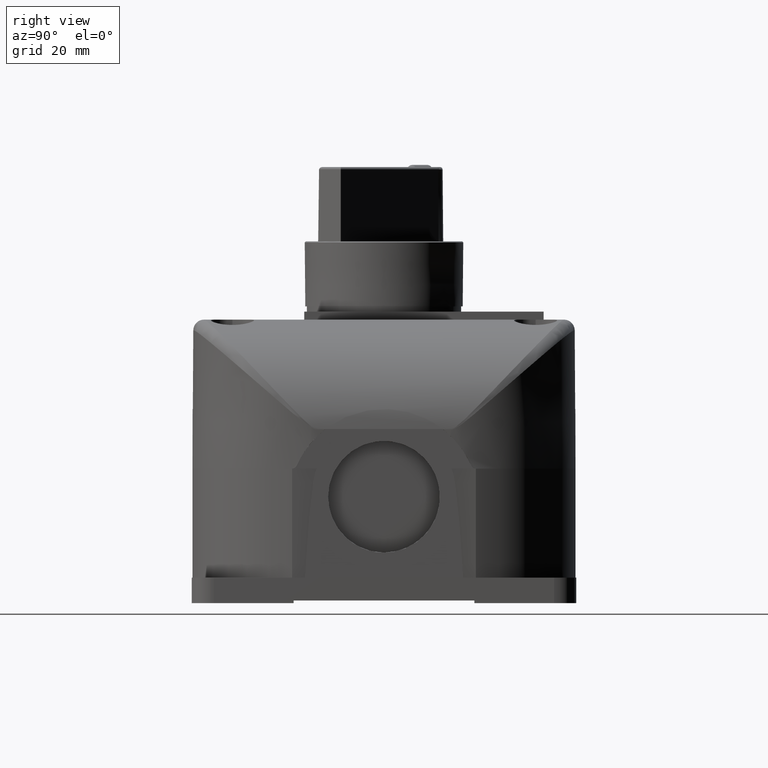
[diagram: clean part render]
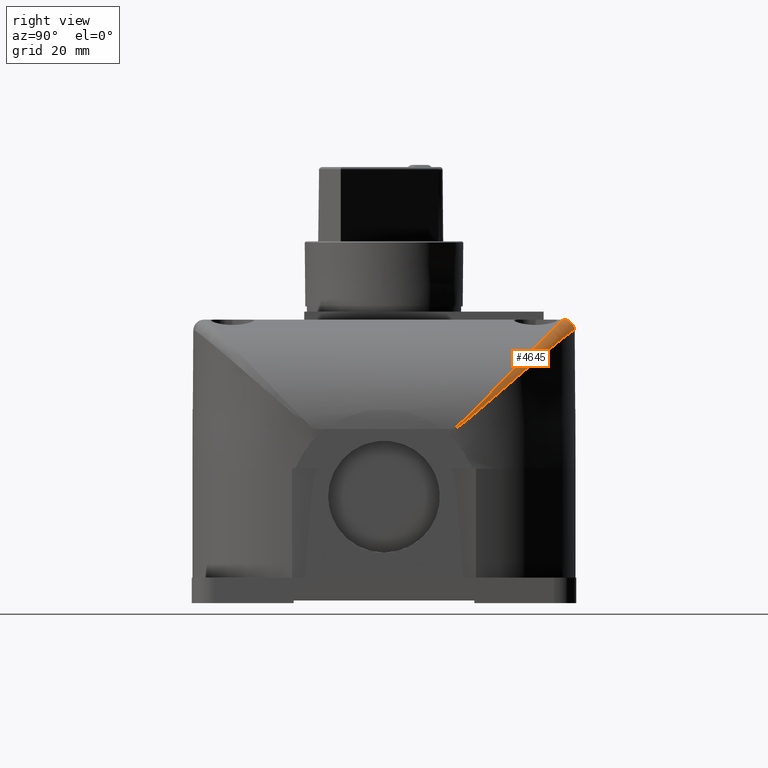
[diagram: same view with one face highlighted and labeled with its STEP entity id]
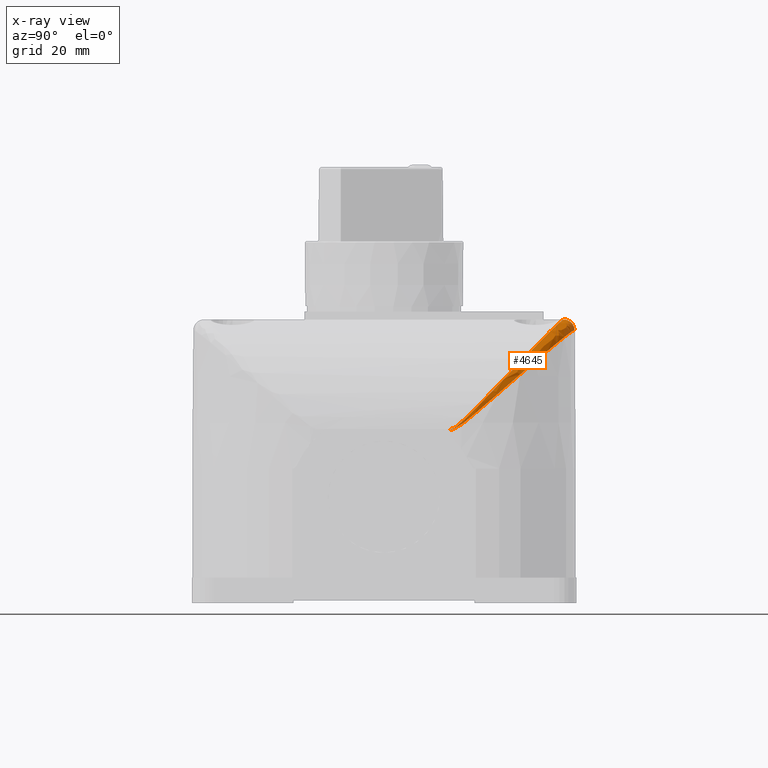
[diagram: x-ray of the same camera — body ghosted, the highlighted face saturated]
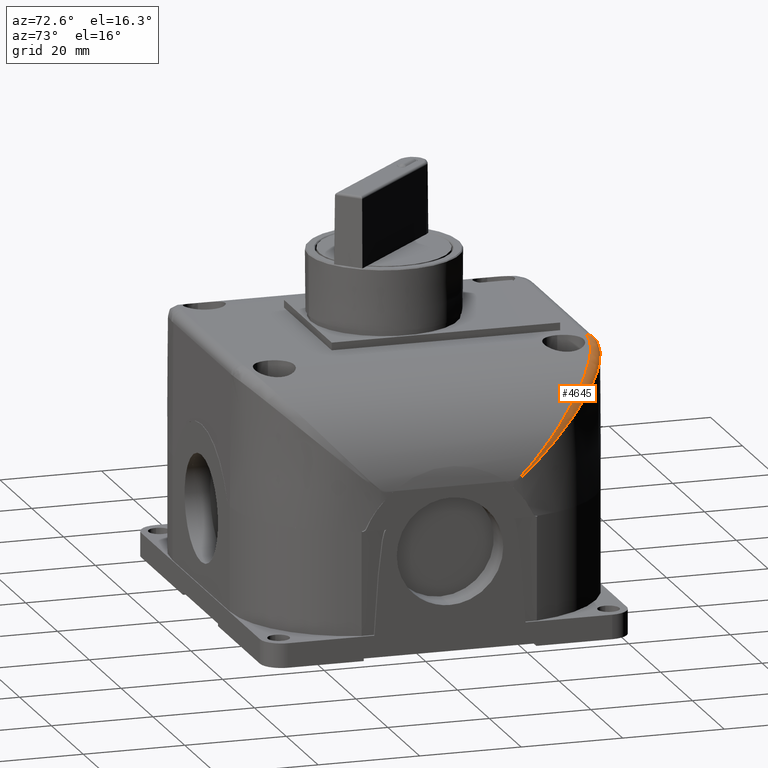
[diagram: same view with one face highlighted and labeled with its STEP entity id]
A machine part, right view. The second image highlights one B-rep face of the part: STEP entity #4645.
The next image is the same camera in x-ray: the body ghosted, the highlighted face saturated — about 0% of this face is hidden behind the body in this view.
A second angle (auxiliary view) of the same face is appended — the face is thin or edge-on in the first view.
In plain terms, the highlighted face is a freeform B-spline surface patch.
Its self-contained STEP definition (entity closure, byte-faithful):
#176 = CARTESIAN_POINT ( 'NONE',  ( 3.265404575038634238, -0.9051935461866198462, 1.295541807410427904 ) ) ;
#209 = CARTESIAN_POINT ( 'NONE',  ( 2.909397215600627362, -0.2062627134188037559, 1.872292926878065256 ) ) ;
#283 = CARTESIAN_POINT ( 'NONE',  ( 2.834468908178523705, -0.2134441021156443241, 1.992021453472787362 ) ) ;
#298 = CARTESIAN_POINT ( 'NONE',  ( 3.265698535053056073, -0.9152756871707017350, 1.291380827273003185 ) ) ;
#417 = CARTESIAN_POINT ( 'NONE',  ( 3.261533460408405638, -0.8520517123228971146, 1.335593132237050451 ) ) ;
#457 = CARTESIAN_POINT ( 'NONE',  ( 3.218629158681876934, -0.6425265360022325289, 1.495715073343560908 ) ) ;
#588 = CARTESIAN_POINT ( 'NONE',  ( 3.254011706640219437, -0.7856945697005465190, 1.373671280190175592 ) ) ;
#705 = CARTESIAN_POINT ( 'NONE',  ( 3.226349882874069319, -0.6669195089175868896, 1.474662282265948532 ) ) ;
#775 = CARTESIAN_POINT ( 'NONE',  ( 2.843097090341551336, -0.1962723902407230991, 1.987224686444047039 ) ) ;
#787 = CARTESIAN_POINT ( 'NONE',  ( 3.211403584411341772, -0.6499550670571786481, 1.539495812780744544 ) ) ;
#820 = CARTESIAN_POINT ( 'NONE',  ( 3.143119009883904358, -0.4748091074085727947, 1.641360134473006216 ) ) ;
#914 = CARTESIAN_POINT ( 'NONE',  ( 3.014916225607195521, -0.3572907007955891667, 1.844476032022297041 ) ) ;
#951 = CARTESIAN_POINT ( 'NONE',  ( 3.251237301027479099, -0.7695063356701178359, 1.387257002598565547 ) ) ;
#1022 = CARTESIAN_POINT ( 'NONE',  ( 3.265938728670791935, -0.9222339530745498060, 1.287754308826174698 ) ) ;
#1038 = CARTESIAN_POINT ( 'NONE',  ( 3.253581560407081241, -0.7972325579423396036, 1.388155249814208902 ) ) ;
#1152 = CARTESIAN_POINT ( 'NONE',  ( 3.263998959076630069, -0.8734562626517468065, 1.313833186414717025 ) ) ;
#1162 = CARTESIAN_POINT ( 'NONE',  ( 3.116581200251230310, -0.4752133043386753131, 1.721821775155810252 ) ) ;
#1279 = CARTESIAN_POINT ( 'NONE',  ( 3.265880676548598149, -0.9223871351431208732, 1.288643507093705232 ) ) ;
#1291 = CARTESIAN_POINT ( 'NONE',  ( 3.234947611988189031, -0.7185866174914208315, 1.468282772683580095 ) ) ;
#1560 = CARTESIAN_POINT ( 'NONE',  ( 3.263953180886423056, -0.8709540560974848855, 1.307984237566448993 ) ) ;
#1635 = CARTESIAN_POINT ( 'NONE',  ( 3.183403443724145632, -0.5237034215938293213, 1.598672335837263647 ) ) ;
#1643 = CARTESIAN_POINT ( 'NONE',  ( 2.784434683786902731, -0.1951204018283026476, 2.009214132178566370 ) ) ;
#1768 = CARTESIAN_POINT ( 'NONE',  ( 2.638402390324511959, -0.05061226366351440770, 2.000304684658696708 ) ) ;
#1839 = CARTESIAN_POINT ( 'NONE',  ( 2.717266939781661339, -0.09127141323829790487, 1.967303337715729183 ) ) ;
#2184 = CARTESIAN_POINT ( 'NONE',  ( 3.265559621595654161, -0.9100975798091842650, 1.293372028446158506 ) ) ;
#2215 = CARTESIAN_POINT ( 'NONE',  ( 3.035003174020156624, -0.3241477515869929382, 1.771643316891613917 ) ) ;
#2339 = CARTESIAN_POINT ( 'NONE',  ( 3.210674272793932804, -0.6199981931722418071, 1.515234389416003413 ) ) ;
#2408 = CARTESIAN_POINT ( 'NONE',  ( 2.401060105458665550, -0.09268032332197131962, 2.098424899135031385 ) ) ;
#2423 = CARTESIAN_POINT ( 'NONE',  ( 3.260284757183267601, -0.8407823607793120102, 1.345854991002045864 ) ) ;
#2457 = CARTESIAN_POINT ( 'NONE',  ( 3.254019576794583202, -0.7857424925486418132, 1.373631618604346460 ) ) ;
#2533 = CARTESIAN_POINT ( 'NONE',  ( 2.634193858681181055, -0.1261521468089593645, 2.076737142844582884 ) ) ;
#2582 = CARTESIAN_POINT ( 'NONE',  ( 3.202368974907788601, -0.5979058162518261499, 1.534396040635597869 ) ) ;
#2673 = CARTESIAN_POINT ( 'NONE',  ( 2.984665937025283711, -0.3297389721143291763, 1.872906376220347058 ) ) ;
#2706 = CARTESIAN_POINT ( 'NONE',  ( 3.053603733796637965, -0.3459946496696960638, 1.752844619389802183 ) ) ;
#2789 = CARTESIAN_POINT ( 'NONE',  ( 3.255256975148223653, -0.8066475089956013367, 1.378804314267621844 ) ) ;
#2821 = CARTESIAN_POINT ( 'NONE',  ( 3.253816679094688524, -0.7845116512838262723, 1.374661150937927845 ) ) ;
#2915 = CARTESIAN_POINT ( 'NONE',  ( 3.234292338125978272, -0.7163636040684386863, 1.470576650997017065 ) ) ;
#2952 = CARTESIAN_POINT ( 'NONE',  ( 3.264753166064566781, -0.8840054285562906067, 1.299838355308298388 ) ) ;
#2972 = EDGE_CURVE ( 'NONE', #10181, #15899, #3902, .T. ) ;
#3028 = CARTESIAN_POINT ( 'NONE',  ( 2.648841798339527376, -0.06733377065650252014, 2.055014111569227975 ) ) ;
#3039 = CARTESIAN_POINT ( 'NONE',  ( 3.250699855379799441, -0.7823085943282255261, 1.403129808930588363 ) ) ;
#3061 = CARTESIAN_POINT ( 'NONE',  ( 2.407107141098121961, -0.01402467430815445594, 2.020143128453144143 ) ) ;
#3156 = CARTESIAN_POINT ( 'NONE',  ( 3.160107092039146526, -0.5436324238325108693, 1.650454988016291757 ) ) ;
#3254 = B_SPLINE_SURFACE_WITH_KNOTS ( 'NONE', 3, 3, ( 
 ( #2408, #19515, #2533, #283, #15399, #17885, #23491, #18257, #13911, #8460, #1279, #19639 ),
 ( #4517, #18012, #16397, #775, #14283, #15890, #6596, #10563, #1152, #5008, #1022, #8586 ),
 ( #21873, #12418, #3028, #17762, #6477, #21638, #4637, #12162, #23617, #22007, #20138, #14161 ),
 ( #21756, #3621, #22495, #11040, #24109, #24344, #24459, #20739, #10925, #16758, #18744, #9071 ),
 ( #5588, #24224, #1768, #9316, #7217, #1635, #16520, #14658, #7101, #14783, #6977, #22248 ) ),
 .UNSPECIFIED., .F., .F., .F.,
 ( 4, 1, 4 ),
 ( 4, 1, 1, 1, 1, 1, 1, 1, 1, 4 ),
 ( -0.001168171341295950018, 0.5714285714285709528, 1.000988294529340017 ),
 ( -0.001168171341295950018, 0.5428446137748109690, 1.085689227549619940, 1.628533841324429909, 2.714223068874059841, 3.257067682648870033, 3.528489989536269800, 3.664201142979980119, 3.732056719701830172, 3.801080467764979876 ),
 .UNSPECIFIED. ) ;
#3279 = CARTESIAN_POINT ( 'NONE',  ( 2.722954377266189052, -0.1664587572626944900, 2.037226366823465806 ) ) ;
#3312 = CARTESIAN_POINT ( 'NONE',  ( 3.261363370844574838, -0.8407881748383607690, 1.329603498036936005 ) ) ;
#3399 = CARTESIAN_POINT ( 'NONE',  ( 2.605673103801147583, -0.1267654090364580821, 2.074035419141702974 ) ) ;
#3431 = CARTESIAN_POINT ( 'NONE',  ( 3.263280459222644314, -0.8616695924936470519, 1.314232485565598463 ) ) ;
#3571 = CARTESIAN_POINT ( 'NONE',  ( 2.687146404492781748, -0.07850322852661917317, 1.977372134583807117 ) ) ;
#3621 = CARTESIAN_POINT ( 'NONE',  ( 2.486054077679862306, -0.01961471218267985678, 2.037640208319775326 ) ) ;
#3698 = CARTESIAN_POINT ( 'NONE',  ( 2.832273466648766114, -0.1521570529982097242, 1.917669540808257800 ) ) ;
#3902 =( BOUNDED_CURVE ( )  B_SPLINE_CURVE ( 3, ( #16052, #4920, #23773, #3061 ),
 .UNSPECIFIED., .F., .F. ) 
 B_SPLINE_CURVE_WITH_KNOTS ( ( 4, 4 ),
 ( 0.000000000000000000, 1.000000000000000000 ),
 .UNSPECIFIED. ) 
 CURVE ( )  GEOMETRIC_REPRESENTATION_ITEM ( )  RATIONAL_B_SPLINE_CURVE ( ( 1.000000000000000000, 0.8061071179409632359, 0.8061071179409632359, 1.000000000000000000 ) ) 
 REPRESENTATION_ITEM ( '' )  );
#3912 = CARTESIAN_POINT ( 'NONE',  ( 3.264741905503198982, -0.8910037520799722888, 1.304010267330316886 ) ) ;
#3944 = CARTESIAN_POINT ( 'NONE',  ( 2.909103168376768078, -0.2060342114587695173, 1.872486100607543058 ) ) ;
#4073 = CARTESIAN_POINT ( 'NONE',  ( 2.655322623426026318, -0.06629792618967969564, 1.986815081282234274 ) ) ;
#4193 = CARTESIAN_POINT ( 'NONE',  ( 3.206695412874643214, -0.6092299515973359503, 1.524572486869956833 ) ) ;
#4284 = CARTESIAN_POINT ( 'NONE',  ( 3.261388886750414606, -0.8507358148511436902, 1.336788259634980269 ) ) ;
#4318 = CARTESIAN_POINT ( 'NONE',  ( 3.254014665224195912, -0.7857125904988316867, 1.373656439488645020 ) ) ;
#4400 = CARTESIAN_POINT ( 'NONE',  ( 3.265521307670927076, -0.9088467583060406696, 1.293910971693332801 ) ) ;
#4435 = CARTESIAN_POINT ( 'NONE',  ( 3.230641326129187973, -0.6815113600429096863, 1.462103403895249176 ) ) ;
#4517 = CARTESIAN_POINT ( 'NONE',  ( 2.402699764481468492, -0.06921623472361689011, 2.098471810389669123 ) ) ;
#4530 = CARTESIAN_POINT ( 'NONE',  ( 3.201034646951566032, -0.6240027018628380162, 1.566555334427148116 ) ) ;
#4565 = CARTESIAN_POINT ( 'NONE',  ( 3.128411479173723642, -0.4501091162189385653, 1.662798337870582399 ) ) ;
#4637 = CARTESIAN_POINT ( 'NONE',  ( 3.244362096457732658, -0.7253460425952938939, 1.440634019675102406 ) ) ;
#4645 = ADVANCED_FACE ( 'NONE', ( #21136 ), #3254, .F. ) ;
#4651 = CARTESIAN_POINT ( 'NONE',  ( 3.220716979347994169, -0.6746482443477958002, 1.513786743370503451 ) ) ;
#4684 = CARTESIAN_POINT ( 'NONE',  ( 3.233920328808200129, -0.6933088595275868071, 1.451970609780705690 ) ) ;
#4768 = CARTESIAN_POINT ( 'NONE',  ( 3.210606187184909643, -0.6479465277111584598, 1.541589747267571919 ) ) ;
#4895 = CARTESIAN_POINT ( 'NONE',  ( 3.248232437310654142, -0.7702737956006510123, 1.415288741448876397 ) ) ;
#4920 = CARTESIAN_POINT ( 'NONE',  ( 2.404800696794592074, -0.04676994213271704059, 2.098425196850393970 ) ) ;
#5008 = CARTESIAN_POINT ( 'NONE',  ( 3.265594310168094871, -0.9043755111037979910, 1.293329545019457294 ) ) ;
#5018 = CARTESIAN_POINT ( 'NONE',  ( 3.054198358625548337, -0.3984575900242663948, 1.801742989362116631 ) ) ;
#5160 = CARTESIAN_POINT ( 'NONE',  ( 3.264254262123493344, -0.8754410519113267064, 1.305057595767166623 ) ) ;
#5588 = CARTESIAN_POINT ( 'NONE',  ( 2.406605490980023632, -0.01398886917457337759, 2.020021205772378092 ) ) ;
#5596 = CARTESIAN_POINT ( 'NONE',  ( 2.883935232303584506, -0.2520787802517179266, 1.952291133547743751 ) ) ;
#5667 = CARTESIAN_POINT ( 'NONE',  ( 2.909489759096295369, -0.2063346635566310205, 1.872232098571898096 ) ) ;
#5753 = CARTESIAN_POINT ( 'NONE',  ( 3.265609840346506143, -0.9118371909029657774, 1.292659217011799422 ) ) ;
#5787 = CARTESIAN_POINT ( 'NONE',  ( 2.906218426350954509, -0.2038010990419904522, 1.874373411324637528 ) ) ;
#5833 = B_SPLINE_CURVE_WITH_KNOTS ( 'NONE', 3,
 ( #11229, #17062, #9503, #13341, #20561, #4073, #15204, #3571, #18814, #22560, #9752, #11101, #1839, #18689, #9267, #22806, #7409, #14961, #3698, #16946, #24528, #9628, #13460, #11467, #5787, #7523, #20939, #3944, #22684, #209, #5667, #13220, #20814, #19189, #19059, #7773, #2215, #15327, #17314, #22931, #2706, #12089, #10356, #17435, #23410, #8023, #12206, #17935, #10124, #4565, #19313, #10237, #820, #15699, #21682, #19689, #23298, #17807, #13722, #6276, #8508, #10005, #21186, #2582, #4193, #11722, #8382, #17685, #2339, #13842, #21566, #21429, #9875, #457, #15940, #705, #15581, #4435, #23541, #11973, #8265, #8144, #23052, #15818, #6521, #6031, #4684, #14085, #23180, #19804, #951, #19572, #6397, #6157, #2821, #13965, #17568, #21307, #4318, #13595, #11843, #19434, #2457, #588, #7134, #23784, #10843, #10480, #14697, #3312, #14580, #6764, #14205, #22047, #20178, #16187, #16437, #16561, #3431, #1560, #5160, #18304, #12329, #2952, #14328, #22287, #10963, #16309, #10605, #14465, #12691 ),
 .UNSPECIFIED., .F., .F.,
 ( 4, 2, 2, 2, 1, 1, 1, 1, 1, 2, 2, 2, 2, 1, 1, 1, 1, 1, 1, 1, 2, 2, 2, 2, 1, 1, 1, 1, 1, 1, 2, 2, 2, 2, 1, 1, 1, 1, 1, 2, 2, 2, 2, 1, 1, 1, 1, 1, 1, 2, 2, 2, 2, 1, 1, 1, 1, 1, 1, 1, 1, 2, 2, 2, 2, 2, 1, 1, 1, 1, 1, 1, 2, 2, 2, 2, 1, 1, 1, 1, 1, 2, 2, 2, 1, 1, 1, 1, 1, 2, 2, 4 ),
 ( 0.000000000000000000, 0.06250000000022395974, 0.09375000000033593961, 0.1093750000003918810, 0.1171875000004195949, 0.1210937500004331813, 0.1230468750004399814, 0.1240234375004431178, 0.1245117187504443945, 0.1247558593754447276, 0.1250000000004450607, 0.1875000000003926026, 0.2187500000003660405, 0.2343750000003530787, 0.2421875000003465006, 0.2460937500003435308, 0.2480468750003420320, 0.2490234375003412826, 0.2495117187503407274, 0.2497558593753401446, 0.2498779296878401446, 0.2500000000003401168, 0.3749999999998628319, 0.4374999999996246336, 0.4687499999995053401, 0.4843749999994461097, 0.4921874999994169664, 0.4960937499994028110, 0.4980468749993959277, 0.4990234374993917643, 0.4995117187493892108, 0.4999999999993867128, 0.5624999999991044941, 0.5937499999989632737, 0.6093749999988924415, 0.6171874999988570254, 0.6210937499988393729, 0.6230468749988303800, 0.6240234374988257171, 0.6245117187488236077, 0.6249999999988213872, 0.6874999999985562660, 0.7187499999984234833, 0.7343749999983570920, 0.7421874999983240073, 0.7460937499983075760, 0.7480468749982992493, 0.7490234374982948085, 0.7495117187482925880, 0.7497558593732916998, 0.7499999999982908117, 0.8124999999979219956, 0.8437499999977374765, 0.8593749999976453280, 0.8671874999975989207, 0.8710937499975759390, 0.8730468749975643927, 0.8740234374975588416, 0.8745117187475559550, 0.8747558593725538456, 0.8748779296850522913, 0.8749389648413017362, 0.8749999999975510701, 0.9062499999972734033, 0.9218749999971346254, 0.9296874999970655695, 0.9335937499970308195, 0.9355468749970138331, 0.9365234374970038411, 0.9370117187469988451, 0.9372558593719975129, 0.9373779296844954034, 0.9374389648407482900, 0.9374999999970011766, 0.9531249999977611242, 0.9609374999981410426, 0.9648437499983307797, 0.9667968749984257038, 0.9677734374984731103, 0.9682617187484968690, 0.9685058593735086374, 0.9686279296860146326, 0.9687499999985206278, 0.9765624999988948840, 0.9804687499990818456, 0.9824218749991753263, 0.9833984374992220667, 0.9838867187492453814, 0.9841308593742569277, 0.9842529296867625899, 0.9843749999992682520, 1.000000000000000000 ),
 .UNSPECIFIED. ) ;
#5875 = CARTESIAN_POINT ( 'NONE',  ( 3.265845720700356392, -0.9238149993118608405, 1.289187725183639222 ) ) ;
#6031 = CARTESIAN_POINT ( 'NONE',  ( 3.233913046773683853, -0.6932820699441897272, 1.451993600997686151 ) ) ;
#6124 = CARTESIAN_POINT ( 'NONE',  ( 3.265755436328508399, -0.9181531538233389522, 1.290537537307365534 ) ) ;
#6157 = CARTESIAN_POINT ( 'NONE',  ( 3.253552538982553255, -0.7829230628859342733, 1.375992484030725826 ) ) ;
#6276 = CARTESIAN_POINT ( 'NONE',  ( 3.169147016987952092, -0.5225125420611471672, 1.599894598089194098 ) ) ;
#6361 = CARTESIAN_POINT ( 'NONE',  ( 3.250571372088789435, -0.7816781633838439936, 1.403766330521868833 ) ) ;
#6397 = CARTESIAN_POINT ( 'NONE',  ( 3.253296520887268173, -0.7813924974565137349, 1.377275985172367490 ) ) ;
#6477 = CARTESIAN_POINT ( 'NONE',  ( 3.059702524945157265, -0.3370515155869948654, 1.809103282103787347 ) ) ;
#6490 = CARTESIAN_POINT ( 'NONE',  ( 3.145488084176855992, -0.5192426645756701431, 1.675898917381087871 ) ) ;
#6521 = CARTESIAN_POINT ( 'NONE',  ( 3.233902123385164362, -0.6932418879109248921, 1.452028085921292844 ) ) ;
#6596 = CARTESIAN_POINT ( 'NONE',  ( 3.243646414842287662, -0.7315379716837034918, 1.447081167564932880 ) ) ;
#6609 = CARTESIAN_POINT ( 'NONE',  ( 3.146442623731326549, -0.5207803344757439001, 1.674295236152615329 ) ) ;
#6730 = CARTESIAN_POINT ( 'NONE',  ( 2.958847662260158717, -0.3078760174144264949, 1.895378531863006977 ) ) ;
#6764 = CARTESIAN_POINT ( 'NONE',  ( 3.261906498692074496, -0.8462854314760017704, 1.325461326450994015 ) ) ;
#6861 = CARTESIAN_POINT ( 'NONE',  ( 3.251578865151983244, -0.7866878760425995987, 1.398715638915980275 ) ) ;
#6977 = CARTESIAN_POINT ( 'NONE',  ( 3.266047060377323064, -0.9215833144566639712, 1.283968394504895416 ) ) ;
#6987 = CARTESIAN_POINT ( 'NONE',  ( 2.603759304652442541, -0.1262422395406327391, 2.074497152838111536 ) ) ;
#7055 = B_SPLINE_CURVE_WITH_KNOTS ( 'NONE', 3,
 ( #19277, #15668, #5875, #6124, #298, #5753, #2184, #23265, #4400, #11931, #176, #13305, #23146, #23014, #3912, #11439, #21022, #7743, #9961, #22899, #19158, #7858, #9839, #15414, #13558, #17400, #417, #15542, #13686, #4284, #19396, #2423, #12429, #12293, #2789, #1038, #12547, #6861, #10322, #3039, #6361, #14293, #18271, #4895, #16155, #13924, #23375, #22016, #1291, #2915, #15784, #8347, #20148, #21529, #4651, #20024, #23629, #17774, #787, #21650, #4768, #4530, #10690, #15902, #21886, #3156, #10572, #12057, #18145, #6609, #23504, #6490, #12173, #19893, #1162, #8711, #16277, #14051, #19775, #23752, #14433, #23879, #5018, #17897, #8595, #19655, #914, #2673, #10449, #6730, #8471, #16029, #10203, #14173, #21766, #18024, #22382, #22502, #5596, #20391, #10932, #7345, #8842, #24116, #20746, #1643, #20615, #22141, #18627, #14789, #3279, #16640, #18751, #13023, #20263, #12788, #10815, #3399, #6987, #14666, #7225, #18870, #13148 ),
 .UNSPECIFIED., .F., .F.,
 ( 4, 2, 1, 1, 1, 2, 2, 2, 1, 1, 1, 2, 2, 2, 2, 1, 1, 1, 1, 2, 2, 2, 2, 1, 1, 1, 1, 2, 2, 2, 1, 1, 1, 2, 2, 2, 1, 1, 1, 2, 2, 2, 2, 1, 1, 1, 1, 2, 2, 2, 2, 1, 1, 1, 1, 2, 2, 2, 2, 1, 1, 1, 1, 2, 2, 2, 2, 1, 1, 1, 1, 2, 2, 2, 2, 1, 1, 1, 2, 2, 4 ),
 ( 0.000000000000000000, 0.007812499999999616626, 0.01171874999999955765, 0.01367187499999961316, 0.01464843749999974673, 0.01513671874999969989, 0.01562499999999965306, 0.02343749999999873712, 0.02734374999999836936, 0.02929687499999832773, 0.03027343749999840405, 0.03076171874999851855, 0.03124999999999863304, 0.04687499999999368561, 0.05468749999999134026, 0.05859374999999017453, 0.06054687499998955003, 0.06152343749998896716, 0.06201171874998890471, 0.06225585937498888389, 0.06249999999998885614, 0.09374999999998176459, 0.1093749999999779898, 0.1171874999999759498, 0.1210937499999749783, 0.1230468749999744787, 0.1240234374999744510, 0.1245117187499746869, 0.1249999999999749090, 0.1562499999999825140, 0.1718749999999861222, 0.1796874999999878431, 0.1835937499999887035, 0.1855468749999893141, 0.1874999999999899247, 0.2187500000000020539, 0.2343750000000082712, 0.2421875000000111855, 0.2460937500000128508, 0.2480468750000136835, 0.2500000000000145439, 0.3125000000000516254, 0.3437500000000699996, 0.3593750000000791589, 0.3671875000000837663, 0.3710937500000858758, 0.3730468750000869305, 0.3740234375000873190, 0.3750000000000877076, 0.4375000000001207923, 0.4687500000001373901, 0.4843750000001452172, 0.4921875000001495470, 0.4960937500001517675, 0.4980468750001527667, 0.4990234375001532108, 0.5000000000001536549, 0.5625000000001764144, 0.5937500000001879608, 0.6093750000001940670, 0.6171875000001967315, 0.6210937500001980638, 0.6230468750001987299, 0.6240234375001986189, 0.6250000000001986189, 0.6875000000001706413, 0.7187500000001570966, 0.7343750000001506573, 0.7421875000001475486, 0.7460937500001454392, 0.7480468750001443290, 0.7490234375001438849, 0.7500000000001433298, 0.8125000000001204592, 0.8437500000001085798, 0.8593750000001025846, 0.8671875000000991429, 0.8710937500000973666, 0.8730468750000959233, 0.8750000000000944800, 1.000000000000000000 ),
 .UNSPECIFIED. ) ;
#7101 = CARTESIAN_POINT ( 'NONE',  ( 3.264065771316732256, -0.8691824163984042118, 1.308086232543084426 ) ) ;
#7134 = CARTESIAN_POINT ( 'NONE',  ( 3.256111780195968475, -0.7984823066331531161, 1.363087891455489586 ) ) ;
#7217 = CARTESIAN_POINT ( 'NONE',  ( 3.049288504495027752, -0.3160500352760972076, 1.779292398407153586 ) ) ;
#7225 = CARTESIAN_POINT ( 'NONE',  ( 2.535890333196159752, -0.1079068621314974025, 2.090628700056198497 ) ) ;
#7345 = CARTESIAN_POINT ( 'NONE',  ( 2.814071581677079159, -0.2105623829994623664, 1.993927688369900419 ) ) ;
#7409 = CARTESIAN_POINT ( 'NONE',  ( 2.751732962819176009, -0.1066411286645080891, 1.955075251049833263 ) ) ;
#7523 = CARTESIAN_POINT ( 'NONE',  ( 2.907867535015272509, -0.2050757813329622259, 1.873296237519348706 ) ) ;
#7743 = CARTESIAN_POINT ( 'NONE',  ( 3.264581076583841224, -0.8882596634098809396, 1.305915650481825230 ) ) ;
#7773 = CARTESIAN_POINT ( 'NONE',  ( 3.026308479455352085, -0.3144866566399377450, 1.779942844912703270 ) ) ;
#7858 = CARTESIAN_POINT ( 'NONE',  ( 3.263037377680988005, -0.8673013707477652545, 1.322229943151677745 ) ) ;
#8023 = CARTESIAN_POINT ( 'NONE',  ( 3.071114866714481195, -0.3672004342664045851, 1.734581457639090107 ) ) ;
#8144 = CARTESIAN_POINT ( 'NONE',  ( 3.233723625855221773, -0.6925861550751035711, 1.452590873716744113 ) ) ;
#8265 = CARTESIAN_POINT ( 'NONE',  ( 3.233519442286818535, -0.6918380572640585591, 1.453232994724587446 ) ) ;
#8347 = CARTESIAN_POINT ( 'NONE',  ( 3.233615857010765815, -0.7140855401026400262, 1.472927898648923595 ) ) ;
#8382 = CARTESIAN_POINT ( 'NONE',  ( 3.209884636959904114, -0.6178327858517465021, 1.517111958517013193 ) ) ;
#8460 = CARTESIAN_POINT ( 'NONE',  ( 3.265524751067539366, -0.9048410337697546657, 1.294316736204057738 ) ) ;
#8471 = CARTESIAN_POINT ( 'NONE',  ( 2.951007871570922259, -0.3015022192446490945, 1.901914107584226743 ) ) ;
#8508 = CARTESIAN_POINT ( 'NONE',  ( 3.185489757182419446, -0.5576330511029200521, 1.569367394969812146 ) ) ;
#8586 = CARTESIAN_POINT ( 'NONE',  ( 3.265932662821500188, -0.9314600149672388474, 1.287852297724543682 ) ) ;
#8595 = CARTESIAN_POINT ( 'NONE',  ( 3.053454056399406813, -0.3976380694145107975, 1.802594902865833237 ) ) ;
#8711 = CARTESIAN_POINT ( 'NONE',  ( 3.093515117220452471, -0.4448853754032575658, 1.753426634361375136 ) ) ;
#8842 = CARTESIAN_POINT ( 'NONE',  ( 2.804378162587062739, -0.2053324363684312093, 1.999124064514116617 ) ) ;
#9071 = CARTESIAN_POINT ( 'NONE',  ( 3.266037026114255948, -0.9314886684159318087, 1.284728803516384410 ) ) ;
#9267 = CARTESIAN_POINT ( 'NONE',  ( 2.718245675750614598, -0.09170684095138166569, 1.966957052036811371 ) ) ;
#9316 = CARTESIAN_POINT ( 'NONE',  ( 2.837502451499681388, -0.1461308624882665386, 1.923294352972102494 ) ) ;
#9317 = DIRECTION ( 'NONE',  ( 0.000000000000000000, -1.000000000000000000, 0.000000000000000000 ) ) ;
#9424 = CARTESIAN_POINT ( 'NONE',  ( 3.266041010011432544, -0.9309917753628805803, 1.284061348228405341 ) ) ;
#9503 = CARTESIAN_POINT ( 'NONE',  ( 2.512532691482891156, -0.02598533430801509836, 2.015699388830360483 ) ) ;
#9628 = CARTESIAN_POINT ( 'NONE',  ( 2.882943452150426467, -0.1863429412760427006, 1.889092795344444076 ) ) ;
#9752 = CARTESIAN_POINT ( 'NONE',  ( 2.713152713485145640, -0.08945370968921319277, 1.968747200501490546 ) ) ;
#9839 = CARTESIAN_POINT ( 'NONE',  ( 3.262749508385140551, -0.8640902287971231610, 1.324955283225414115 ) ) ;
#9875 = CARTESIAN_POINT ( 'NONE',  ( 3.214748695443657933, -0.6312328575830425947, 1.505493625345452724 ) ) ;
#9961 = CARTESIAN_POINT ( 'NONE',  ( 3.264563313089420049, -0.8879660592286553467, 1.306123470585642377 ) ) ;
#10005 = CARTESIAN_POINT ( 'NONE',  ( 3.190814246042345204, -0.5697168955823445069, 1.558868219299399449 ) ) ;
#10020 = ORIENTED_EDGE ( 'NONE', *, *, #11206, .F. ) ;
#10124 = CARTESIAN_POINT ( 'NONE',  ( 3.117427852797494126, -0.4326234939803730306, 1.677962858549333136 ) ) ;
#10181 = VERTEX_POINT ( 'NONE', #11920 ) ;
#10203 = CARTESIAN_POINT ( 'NONE',  ( 2.937140016935576803, -0.2906629795228685698, 1.913001011888871616 ) ) ;
#10237 = CARTESIAN_POINT ( 'NONE',  ( 3.140046531185076262, -0.4694948108255517227, 1.645974574363629150 ) ) ;
#10322 = CARTESIAN_POINT ( 'NONE',  ( 3.250996723530608090, -0.7837747805942159030, 1.401650513134651943 ) ) ;
#10356 = CARTESIAN_POINT ( 'NONE',  ( 3.054478920150703658, -0.3470521740702979807, 1.751933899966054753 ) ) ;
#10449 = CARTESIAN_POINT ( 'NONE',  ( 2.974422445267385751, -0.3208292673541958684, 1.882078439005523851 ) ) ;
#10480 = CARTESIAN_POINT ( 'NONE',  ( 3.260261702438697284, -0.8305494102210652096, 1.337484106222585734 ) ) ;
#10563 = CARTESIAN_POINT ( 'NONE',  ( 3.259416667430381942, -0.8244886230579201447, 1.356478513881507197 ) ) ;
#10572 = CARTESIAN_POINT ( 'NONE',  ( 3.155687434080496345, -0.5360140322544735270, 1.658404576001429431 ) ) ;
#10605 = CARTESIAN_POINT ( 'NONE',  ( 3.265735208044225235, -0.9025042152515154736, 1.289091014986788020 ) ) ;
#10690 = CARTESIAN_POINT ( 'NONE',  ( 3.190851031137635907, -0.6016775371080932411, 1.589864798488252573 ) ) ;
#10815 = CARTESIAN_POINT ( 'NONE',  ( 2.608543182956537976, -0.1275546363680228057, 2.073337789469105186 ) ) ;
#10843 = CARTESIAN_POINT ( 'NONE',  ( 3.259693046872437883, -0.8256499832557468999, 1.341321200942230618 ) ) ;
#10925 = CARTESIAN_POINT ( 'NONE',  ( 3.264104938854252236, -0.8699344287429160438, 1.309101840864490773 ) ) ;
#10932 = CARTESIAN_POINT ( 'NONE',  ( 2.833369573921209472, -0.2212656189762447767, 1.983263383417757320 ) ) ;
#10963 = CARTESIAN_POINT ( 'NONE',  ( 3.264807424359602805, -0.8850158155715436292, 1.299247735205953269 ) ) ;
#11040 = CARTESIAN_POINT ( 'NONE',  ( 2.843218247309468261, -0.1497177990224868305, 1.936527405540984015 ) ) ;
#11101 = CARTESIAN_POINT ( 'NONE',  ( 2.715896166524286226, -0.09066351319832220701, 1.967786523881378535 ) ) ;
#11206 = EDGE_CURVE ( 'NONE', #15899, #12730, #5833, .T. ) ;
#11229 = CARTESIAN_POINT ( 'NONE',  ( 2.407107141098121961, -0.01402467430815445594, 2.020143128453144143 ) ) ;
#11439 = CARTESIAN_POINT ( 'NONE',  ( 3.264649529687773111, -0.8894083321272765463, 1.305109949119666712 ) ) ;
#11467 = CARTESIAN_POINT ( 'NONE',  ( 2.902914760784335968, -0.2012627932624316829, 1.876517443242237348 ) ) ;
#11722 = CARTESIAN_POINT ( 'NONE',  ( 3.208826980637815129, -0.6149547221743058012, 1.519607645399300822 ) ) ;
#11843 = CARTESIAN_POINT ( 'NONE',  ( 3.254018773745795290, -0.7857376029114324645, 1.373635669641467327 ) ) ;
#11920 = CARTESIAN_POINT ( 'NONE',  ( 2.401574803149606474, -0.09256890255721408889, 2.098425196850393970 ) ) ;
#11931 = CARTESIAN_POINT ( 'NONE',  ( 3.265511668837258519, -0.9085413213601775118, 1.294045915063719132 ) ) ;
#11973 = CARTESIAN_POINT ( 'NONE',  ( 3.233110488014936390, -0.6903460560974262750, 1.454513828599157454 ) ) ;
#12057 = CARTESIAN_POINT ( 'NONE',  ( 3.150429309700685021, -0.5272724314255120559, 1.667523813347948192 ) ) ;
#12089 = CARTESIAN_POINT ( 'NONE',  ( 3.054216472082473821, -0.3467347447020522333, 1.752207271473812611 ) ) ;
#12162 = CARTESIAN_POINT ( 'NONE',  ( 3.259674601569346741, -0.8212159091256523435, 1.352803155099763899 ) ) ;
#12173 = CARTESIAN_POINT ( 'NONE',  ( 3.145321853610830498, -0.5189754488240347907, 1.676177599447648880 ) ) ;
#12206 = CARTESIAN_POINT ( 'NONE',  ( 3.086997407829042306, -0.3881046937267423891, 1.716516488000887408 ) ) ;
#12293 = CARTESIAN_POINT ( 'NONE',  ( 3.256250807358730182, -0.8126891462024868895, 1.372864548756536074 ) ) ;
#12329 = CARTESIAN_POINT ( 'NONE',  ( 3.264688043793271266, -0.8828160855541140606, 1.300540761856822325 ) ) ;
#12418 = CARTESIAN_POINT ( 'NONE',  ( 2.487499296326354248, -0.03415077579954992060, 2.078658814636346275 ) ) ;
#12429 = CARTESIAN_POINT ( 'NONE',  ( 3.258919929742064348, -0.8301090673372759632, 1.355941405316240633 ) ) ;
#12547 = CARTESIAN_POINT ( 'NONE',  ( 3.252697643526734517, -0.7924369586049749836, 1.392941013407305695 ) ) ;
#12691 = CARTESIAN_POINT ( 'NONE',  ( 3.266041010011432544, -0.9309917753628805803, 1.284061348228405341 ) ) ;
#12730 = VERTEX_POINT ( 'NONE', #9424 ) ;
#12788 = CARTESIAN_POINT ( 'NONE',  ( 2.615235570769959050, -0.1294274784231327080, 2.071674771229002676 ) ) ;
#13023 = CARTESIAN_POINT ( 'NONE',  ( 2.640022133523435510, -0.1368310576962645519, 2.064994166833721501 ) ) ;
#13148 = CARTESIAN_POINT ( 'NONE',  ( 2.401574803149606474, -0.09256890255721408889, 2.098425196850393970 ) ) ;
#13220 = CARTESIAN_POINT ( 'NONE',  ( 2.935174421480402085, -0.2263069800966720502, 1.855346840853853152 ) ) ;
#13279 = ORIENTED_EDGE ( 'NONE', *, *, #22638, .F. ) ;
#13305 = CARTESIAN_POINT ( 'NONE',  ( 3.265278617260955141, -0.9019059191146769905, 1.297255151919543881 ) ) ;
#13341 = CARTESIAN_POINT ( 'NONE',  ( 2.590843500159090596, -0.04541345920126101804, 2.002368169961993960 ) ) ;
#13460 = CARTESIAN_POINT ( 'NONE',  ( 2.896285852667086935, -0.1962304401690862787, 1.880764244305523469 ) ) ;
#13485 = ORIENTED_EDGE ( 'NONE', *, *, #16811, .F. ) ;
#13558 = CARTESIAN_POINT ( 'NONE',  ( 3.262016158391947585, -0.8565914116252927313, 1.331512118136521483 ) ) ;
#13595 = CARTESIAN_POINT ( 'NONE',  ( 3.254017536808511135, -0.7857300719141653289, 1.373641916258766749 ) ) ;
#13686 = CARTESIAN_POINT ( 'NONE',  ( 3.261413171926887955, -0.8509556572733499857, 1.336588258938704143 ) ) ;
#13722 = CARTESIAN_POINT ( 'NONE',  ( 3.157761893374697149, -0.5006087195998828454, 1.618952301646308323 ) ) ;
#13842 = CARTESIAN_POINT ( 'NONE',  ( 3.210786818500659390, -0.6203080270469472079, 1.514965750691624091 ) ) ;
#13911 = CARTESIAN_POINT ( 'NONE',  ( 3.263873820816708626, -0.8744638053143609646, 1.315178556450970593 ) ) ;
#13924 = CARTESIAN_POINT ( 'NONE',  ( 3.241548818203928040, -0.7425108101810563577, 1.443660542482673392 ) ) ;
#13965 = CARTESIAN_POINT ( 'NONE',  ( 3.253918674729345817, -0.7851291502729825789, 1.374143964046445010 ) ) ;
#14051 = CARTESIAN_POINT ( 'NONE',  ( 3.073633836461937996, -0.4206047577781262814, 1.778707514457650962 ) ) ;
#14085 = CARTESIAN_POINT ( 'NONE',  ( 3.233911700481769458, -0.6932771102729671231, 1.451997857254402335 ) ) ;
#14161 = CARTESIAN_POINT ( 'NONE',  ( 3.266008094659567096, -0.9314743489288098699, 1.286291278086833856 ) ) ;
#14173 = CARTESIAN_POINT ( 'NONE',  ( 2.934816859713786030, -0.2888826818255160744, 1.914819655406062138 ) ) ;
#14205 = CARTESIAN_POINT ( 'NONE',  ( 3.261991516265934976, -0.8471728858544590457, 1.324798412356123389 ) ) ;
#14283 = CARTESIAN_POINT ( 'NONE',  ( 3.054114422047476296, -0.3572288324387821179, 1.826287519489818933 ) ) ;
#14293 = CARTESIAN_POINT ( 'NONE',  ( 3.250485436560139441, -0.7812574171094085473, 1.404191241788191435 ) ) ;
#14328 = CARTESIAN_POINT ( 'NONE',  ( 3.264784989217397015, -0.8845958294862075189, 1.299492551937950546 ) ) ;
#14433 = CARTESIAN_POINT ( 'NONE',  ( 3.056785249114624126, -0.4013189038725017976, 1.798768353004203568 ) ) ;
#14465 = CARTESIAN_POINT ( 'NONE',  ( 3.266041010011431656, -0.9177841428005296676, 1.284061348228408894 ) ) ;
#14543 = DIRECTION ( 'NONE',  ( 0.000000000000000000, 0.000000000000000000, -1.000000000000000000 ) ) ;
#14580 = CARTESIAN_POINT ( 'NONE',  ( 3.261731817462471206, -0.8444858659710194893, 1.326810681357410093 ) ) ;
#14658 = CARTESIAN_POINT ( 'NONE',  ( 3.259378434866027519, -0.8165803841199041901, 1.347518689590501584 ) ) ;
#14666 = CARTESIAN_POINT ( 'NONE',  ( 2.602875431939914552, -0.1260019287732772608, 2.074708938570294592 ) ) ;
#14697 = CARTESIAN_POINT ( 'NONE',  ( 3.261013105107232857, -0.8374500006968135235, 1.332158666962289795 ) ) ;
#14783 = CARTESIAN_POINT ( 'NONE',  ( 3.265696151308728368, -0.9023980857106915776, 1.289124819137599909 ) ) ;
#14789 = CARTESIAN_POINT ( 'NONE',  ( 2.752571516523663941, -0.1793144852573503867, 2.024776048028023911 ) ) ;
#14821 = CIRCLE ( 'NONE', #18000, 0.07874015748031502893 ) ;
#14961 = CARTESIAN_POINT ( 'NONE',  ( 2.784394510470837414, -0.1235434134003531997, 1.941320197765745714 ) ) ;
#15204 = CARTESIAN_POINT ( 'NONE',  ( 2.668099989737455768, -0.07100396588399834896, 1.983204542838717277 ) ) ;
#15327 = CARTESIAN_POINT ( 'NONE',  ( 3.044975569117224889, -0.3357136533121585775, 1.761694839250900646 ) ) ;
#15399 = CARTESIAN_POINT ( 'NONE',  ( 3.047550816617744296, -0.3687410361909868040, 1.833602172867295099 ) ) ;
#15414 = CARTESIAN_POINT ( 'NONE',  ( 3.262268772317990173, -0.8591170885666538082, 1.329286049414802884 ) ) ;
#15542 = CARTESIAN_POINT ( 'NONE',  ( 3.261449489283452685, -0.8512851153845805152, 1.336288729787346030 ) ) ;
#15581 = CARTESIAN_POINT ( 'NONE',  ( 3.229215011214407571, -0.6765967169227286027, 1.466331243548643970 ) ) ;
#15668 = CARTESIAN_POINT ( 'NONE',  ( 3.265874815298529743, -0.9274654458818726299, 1.288736891434711263 ) ) ;
#15699 = CARTESIAN_POINT ( 'NONE',  ( 3.144647178786231123, -0.4774786025443900073, 1.639041869064655987 ) ) ;
#15784 = CARTESIAN_POINT ( 'NONE',  ( 3.233852336492401225, -0.7148789437164595473, 1.472108907856338522 ) ) ;
#15818 = CARTESIAN_POINT ( 'NONE',  ( 3.233876633123439870, -0.6931481462258529680, 1.452108537429990909 ) ) ;
#15890 = CARTESIAN_POINT ( 'NONE',  ( 3.185295194479393910, -0.5516142460627192490, 1.628633887455755547 ) ) ;
#15899 = VERTEX_POINT ( 'NONE', #19013 ) ;
#15902 = CARTESIAN_POINT ( 'NONE',  ( 3.174468297999763156, -0.5695294258959621159, 1.623425528949620000 ) ) ;
#15940 = CARTESIAN_POINT ( 'NONE',  ( 3.224423182204733784, -0.6606708255160562704, 1.480050120624837762 ) ) ;
#16029 = CARTESIAN_POINT ( 'NONE',  ( 2.941776290659053661, -0.2942460682800975835, 1.909338724286942623 ) ) ;
#16052 = CARTESIAN_POINT ( 'NONE',  ( 2.401574803149606474, -0.09256890255721408889, 2.098425196850393970 ) ) ;
#16155 = CARTESIAN_POINT ( 'NONE',  ( 3.245769117269663440, -0.7593722292081080960, 1.426391472997972976 ) ) ;
#16187 = CARTESIAN_POINT ( 'NONE',  ( 3.262063175767690115, -0.8479270275760566467, 1.324236432053923718 ) ) ;
#16277 = CARTESIAN_POINT ( 'NONE',  ( 3.085654128129855067, -0.4350242298800475749, 1.763697918781618190 ) ) ;
#16309 = CARTESIAN_POINT ( 'NONE',  ( 3.264809146991986211, -0.8850480638324127458, 1.299228937046646104 ) ) ;
#16397 = CARTESIAN_POINT ( 'NONE',  ( 2.641457596674685160, -0.1046434525897428497, 2.075181466555854115 ) ) ;
#16437 = CARTESIAN_POINT ( 'NONE',  ( 3.262064647727873190, -0.8479425280123250586, 1.324224883266825747 ) ) ;
#16520 = CARTESIAN_POINT ( 'NONE',  ( 3.243192470748842648, -0.7167563105744515495, 1.431239637436043211 ) ) ;
#16561 = CARTESIAN_POINT ( 'NONE',  ( 3.262738103743605844, -0.8550658928254567526, 1.318924603432480636 ) ) ;
#16640 = CARTESIAN_POINT ( 'NONE',  ( 2.677919504619394875, -0.1494653862382603060, 2.053312823305066370 ) ) ;
#16758 = CARTESIAN_POINT ( 'NONE',  ( 3.265699422194504375, -0.9027467616884081725, 1.289867354186459592 ) ) ;
#16811 = EDGE_CURVE ( 'NONE', #21125, #10181, #7055, .T. ) ;
#16946 = CARTESIAN_POINT ( 'NONE',  ( 2.848047178296212234, -0.1622376590892045389, 1.909282975650536063 ) ) ;
#17062 = CARTESIAN_POINT ( 'NONE',  ( 2.459713899307229834, -0.01773008171079390113, 2.020143128453149473 ) ) ;
#17314 = CARTESIAN_POINT ( 'NONE',  ( 3.049917287214740202, -0.3415701417478431146, 1.756654176693184466 ) ) ;
#17400 = CARTESIAN_POINT ( 'NONE',  ( 3.261698352887987262, -0.8535763515813159508, 1.334215156711011208 ) ) ;
#17435 = CARTESIAN_POINT ( 'NONE',  ( 3.054653851257107089, -0.3472638482639496260, 1.751751602871792324 ) ) ;
#17568 = CARTESIAN_POINT ( 'NONE',  ( 3.253986291502881656, -0.7855399596375979288, 1.373800418735818818 ) ) ;
#17685 = CARTESIAN_POINT ( 'NONE',  ( 3.210411406248830701, -0.6192757374365048806, 1.515860798539130583 ) ) ;
#17762 = CARTESIAN_POINT ( 'NONE',  ( 2.851055842328865886, -0.1663113430963806538, 1.967380988064889591 ) ) ;
#17774 = CARTESIAN_POINT ( 'NONE',  ( 3.212213769098816840, -0.6520066288456799475, 1.537357280205877696 ) ) ;
#17807 = CARTESIAN_POINT ( 'NONE',  ( 3.146079353122536837, -0.4799965416264465046, 1.636855020782780112 ) ) ;
#17885 = CARTESIAN_POINT ( 'NONE',  ( 3.182558790114594860, -0.5585584922016600951, 1.634886802335432820 ) ) ;
#17897 = CARTESIAN_POINT ( 'NONE',  ( 3.053680166745577296, -0.3978868298108262369, 1.802336313267283607 ) ) ;
#17935 = CARTESIAN_POINT ( 'NONE',  ( 3.109931644190206956, -0.4212681646722923889, 1.687803240093483481 ) ) ;
#18000 = AXIS2_PLACEMENT_3D ( 'NONE', #22250, #9317, #14543 ) ;
#18012 = CARTESIAN_POINT ( 'NONE',  ( 2.483039657217271934, -0.07442591796444759933, 2.098367626442547262 ) ) ;
#18024 = CARTESIAN_POINT ( 'NONE',  ( 2.933155451105696532, -0.2876155928412509333, 1.916113628029993743 ) ) ;
#18145 = CARTESIAN_POINT ( 'NONE',  ( 3.147775567305217681, -0.5229382616807184414, 1.672044574232749214 ) ) ;
#18160 = ORIENTED_EDGE ( 'NONE', *, *, #2972, .F. ) ;
#18257 = CARTESIAN_POINT ( 'NONE',  ( 3.259135731675193437, -0.8263584573506679298, 1.358563113019554569 ) ) ;
#18271 = CARTESIAN_POINT ( 'NONE',  ( 3.250432934168486554, -0.7810010165359371204, 1.404450252178358394 ) ) ;
#18304 = CARTESIAN_POINT ( 'NONE',  ( 3.264551781549634768, -0.8804032464487073772, 1.301988774185185660 ) ) ;
#18627 = CARTESIAN_POINT ( 'NONE',  ( 2.782027823971209735, -0.1939217544486999956, 2.010394802145871296 ) ) ;
#18689 = CARTESIAN_POINT ( 'NONE',  ( 2.717854208793317294, -0.09153258422020740803, 1.967095647675680903 ) ) ;
#18744 = CARTESIAN_POINT ( 'NONE',  ( 3.266043078643102504, -0.9216980269643018087, 1.284636874007967000 ) ) ;
#18751 = CARTESIAN_POINT ( 'NONE',  ( 2.662806275652125798, -0.1441826327247071604, 2.058243868395954301 ) ) ;
#18814 = CARTESIAN_POINT ( 'NONE',  ( 2.696639699079476760, -0.08236289529752914562, 1.974351780308944315 ) ) ;
#18870 = CARTESIAN_POINT ( 'NONE',  ( 2.468515810738006966, -0.09685531527302400356, 2.098425196850393082 ) ) ;
#19013 = CARTESIAN_POINT ( 'NONE',  ( 2.407107141098121961, -0.01402467430815445594, 2.020143128453144143 ) ) ;
#19059 = CARTESIAN_POINT ( 'NONE',  ( 3.008737822152244945, -0.2955017532126942292, 1.796238249584093616 ) ) ;
#19158 = CARTESIAN_POINT ( 'NONE',  ( 3.263817051452811313, -0.8766219419906788879, 1.314541286955829280 ) ) ;
#19189 = CARTESIAN_POINT ( 'NONE',  ( 2.996782454313294153, -0.2832950400044270678, 1.806696984203967293 ) ) ;
#19277 = CARTESIAN_POINT ( 'NONE',  ( 3.265874923253243356, -0.9309917753628811354, 1.288735238603177846 ) ) ;
#19313 = CARTESIAN_POINT ( 'NONE',  ( 3.133838097073337714, -0.4589650468359272595, 1.655115090440575143 ) ) ;
#19396 = CARTESIAN_POINT ( 'NONE',  ( 3.261372926420113227, -0.8505917083609797480, 1.336919464551055370 ) ) ;
#19434 = CARTESIAN_POINT ( 'NONE',  ( 3.254019261255558515, -0.7857405712570949552, 1.373633210019262529 ) ) ;
#19515 = CARTESIAN_POINT ( 'NONE',  ( 2.479389407380280019, -0.09765517467093164095, 2.098472762365747979 ) ) ;
#19572 = CARTESIAN_POINT ( 'NONE',  ( 3.252267314063808090, -0.7753900579349138900, 1.382314325836622171 ) ) ;
#19639 = CARTESIAN_POINT ( 'NONE',  ( 3.265874407953822889, -0.9314518250498097229, 1.288743218206693131 ) ) ;
#19655 = CARTESIAN_POINT ( 'NONE',  ( 3.034443275536844009, -0.3767553391175768041, 1.824302207525694719 ) ) ;
#19689 = CARTESIAN_POINT ( 'NONE',  ( 3.145735383532647145, -0.4793904541183169332, 1.637381428672086914 ) ) ;
#19775 = CARTESIAN_POINT ( 'NONE',  ( 3.067566475698910278, -0.4134880832728891065, 1.786113009301933507 ) ) ;
#19804 = CARTESIAN_POINT ( 'NONE',  ( 3.246787713896773564, -0.7462734591407484963, 1.406836381841714223 ) ) ;
#19893 = CARTESIAN_POINT ( 'NONE',  ( 3.131269853598675379, -0.4964245801166707883, 1.699695789043221161 ) ) ;
#20024 = CARTESIAN_POINT ( 'NONE',  ( 3.217734205826809468, -0.6663949850915170670, 1.522369519532102533 ) ) ;
#20138 = CARTESIAN_POINT ( 'NONE',  ( 3.266013989663019590, -0.9219658547037585805, 1.286196312958322263 ) ) ;
#20148 = CARTESIAN_POINT ( 'NONE',  ( 3.230075354401435561, -0.7022665647691592739, 1.485129917693782664 ) ) ;
#20178 = CARTESIAN_POINT ( 'NONE',  ( 3.262051302467152247, -0.8478017166310382047, 1.324329733667675368 ) ) ;
#20263 = CARTESIAN_POINT ( 'NONE',  ( 2.628601477294185251, -0.1332984089925151328, 2.068207783806543354 ) ) ;
#20391 = CARTESIAN_POINT ( 'NONE',  ( 2.846116472981488066, -0.2287255665803933080, 1.975791693059748111 ) ) ;
#20561 = CARTESIAN_POINT ( 'NONE',  ( 2.616793020685836968, -0.05306151054042559934, 1.996813495433508168 ) ) ;
#20615 = CARTESIAN_POINT ( 'NONE',  ( 2.783209240329087120, -0.1945094335859956225, 2.009816012957100551 ) ) ;
#20739 = CARTESIAN_POINT ( 'NONE',  ( 3.259520348931208567, -0.8179663223102939806, 1.349104517970427075 ) ) ;
#20746 = CARTESIAN_POINT ( 'NONE',  ( 2.787292039063080207, -0.1965526482960414933, 2.007802336832746892 ) ) ;
#20814 = CARTESIAN_POINT ( 'NONE',  ( 2.960305379868006792, -0.2480226063939747483, 1.836858582580426225 ) ) ;
#20939 = CARTESIAN_POINT ( 'NONE',  ( 2.908691404939312886, -0.2057145044529262723, 1.872756361155082372 ) ) ;
#21022 = CARTESIAN_POINT ( 'NONE',  ( 3.264608634319126956, -0.8887197720523851707, 1.305591943246491304 ) ) ;
#21125 = VERTEX_POINT ( 'NONE', #24170 ) ;
#21136 = FACE_OUTER_BOUND ( 'NONE', #21960, .T. ) ;
#21186 = CARTESIAN_POINT ( 'NONE',  ( 3.198557941389950532, -0.5884142779093102238, 1.542634293847853666 ) ) ;
#21307 = CARTESIAN_POINT ( 'NONE',  ( 3.254007330733791115, -0.7856679500666964300, 1.373693605929532602 ) ) ;
#21429 = CARTESIAN_POINT ( 'NONE',  ( 3.210921902404314743, -0.6206802414405457879, 1.514643028326563945 ) ) ;
#21529 = CARTESIAN_POINT ( 'NONE',  ( 3.226487802905519064, -0.6911905816049425111, 1.496605322992367704 ) ) ;
#21566 = CARTESIAN_POINT ( 'NONE',  ( 3.210861824179469970, -0.6205146296273823525, 1.514786618726123857 ) ) ;
#21638 = CARTESIAN_POINT ( 'NONE',  ( 3.187544779818700658, -0.5394601311965617763, 1.616747667098684893 ) ) ;
#21650 = CARTESIAN_POINT ( 'NONE',  ( 3.210861405062090057, -0.6485877323101003622, 1.540921242260874235 ) ) ;
#21682 = CARTESIAN_POINT ( 'NONE',  ( 3.145409228586414141, -0.4788164358604161674, 1.637879974994721266 ) ) ;
#21756 = CARTESIAN_POINT ( 'NONE',  ( 2.406590068512169278, -0.01406232110340422704, 2.037665748711507518 ) ) ;
#21766 = CARTESIAN_POINT ( 'NONE',  ( 2.933820155842973065, -0.2881221071012065593, 1.915596396011701730 ) ) ;
#21873 = CARTESIAN_POINT ( 'NONE',  ( 2.405553654964909249, -0.02854934230332567546, 2.078846506081538870 ) ) ;
#21886 = CARTESIAN_POINT ( 'NONE',  ( 3.168822734736209679, -0.5590366614785831079, 1.634378895422527567 ) ) ;
#21960 = EDGE_LOOP ( 'NONE', ( #10020, #18160, #13485, #13279 ) ) ;
#22007 = CARTESIAN_POINT ( 'NONE',  ( 3.265679269602054902, -0.9035607220646365567, 1.291599506067113046 ) ) ;
#22016 = CARTESIAN_POINT ( 'NONE',  ( 3.236443780317214802, -0.7237458090768089658, 1.462962089285850587 ) ) ;
#22047 = CARTESIAN_POINT ( 'NONE',  ( 3.262033451992483180, -0.8476135299385170185, 1.324469896148271486 ) ) ;
#22141 = CARTESIAN_POINT ( 'NONE',  ( 2.782392087635091382, -0.1941027551294438602, 2.010216561487554010 ) ) ;
#22248 = CARTESIAN_POINT ( 'NONE',  ( 3.266040880029244420, -0.9314948015754830335, 1.284059022404919759 ) ) ;
#22250 = CARTESIAN_POINT ( 'NONE',  ( 3.187302185062004245, -0.9309917753628805803, 1.283603259145338127 ) ) ;
#22287 = CARTESIAN_POINT ( 'NONE',  ( 3.264798471085663678, -0.8848479431836386855, 1.299345507615782935 ) ) ;
#22382 = CARTESIAN_POINT ( 'NONE',  ( 2.932863906905343931, -0.2873937016772008524, 1.916340196214911584 ) ) ;
#22495 = CARTESIAN_POINT ( 'NONE',  ( 2.642858869639622021, -0.05188748433185704639, 2.016714382557184937 ) ) ;
#22502 = CARTESIAN_POINT ( 'NONE',  ( 2.908585550386852514, -0.2689454171777749258, 1.935175330074661026 ) ) ;
#22560 = CARTESIAN_POINT ( 'NONE',  ( 2.707658253780004465, -0.08705809598078545486, 1.970645770896969129 ) ) ;
#22638 = EDGE_CURVE ( 'NONE', #12730, #21125, #14821, .T. ) ;
#22684 = CARTESIAN_POINT ( 'NONE',  ( 2.909279601620843092, -0.2061713027659413666, 1.872370205580296432 ) ) ;
#22806 = CARTESIAN_POINT ( 'NONE',  ( 2.718507793262844086, -0.09182365625730831704, 1.966864124080973220 ) ) ;
#22899 = CARTESIAN_POINT ( 'NONE',  ( 3.264225476043324470, -0.8824185166739375585, 1.310065441385253937 ) ) ;
#22931 = CARTESIAN_POINT ( 'NONE',  ( 3.052376822587208327, -0.3445167538793270090, 1.754117239479985546 ) ) ;
#23014 = CARTESIAN_POINT ( 'NONE',  ( 3.264914797605133590, -0.8941497110971582396, 1.301910819928363550 ) ) ;
#23052 = CARTESIAN_POINT ( 'NONE',  ( 3.233825643195757049, -0.6929607284237888631, 1.452269387195181727 ) ) ;
#23146 = CARTESIAN_POINT ( 'NONE',  ( 3.265043755371563883, -0.8967693087321075840, 1.300282681606178770 ) ) ;
#23180 = CARTESIAN_POINT ( 'NONE',  ( 3.242073542844342793, -0.7233087355408698294, 1.426224433280240955 ) ) ;
#23265 = CARTESIAN_POINT ( 'NONE',  ( 3.265536807786832529, -0.9093476687061528008, 1.293693291569189219 ) ) ;
#23298 = CARTESIAN_POINT ( 'NONE',  ( 3.145952722665607215, -0.4797732798605197635, 1.637048932963389491 ) ) ;
#23375 = CARTESIAN_POINT ( 'NONE',  ( 3.239307258421030067, -0.7339528333079710087, 1.452448697110960252 ) ) ;
#23410 = CARTESIAN_POINT ( 'NONE',  ( 3.054701495500040220, -0.3473215041445189555, 1.751701948628307193 ) ) ;
#23491 = CARTESIAN_POINT ( 'NONE',  ( 3.242803970653078682, -0.7350740793285813757, 1.450674760815881870 ) ) ;
#23504 = CARTESIAN_POINT ( 'NONE',  ( 3.145870071409562652, -0.5198574708880588924, 1.675257722634006630 ) ) ;
#23541 = CARTESIAN_POINT ( 'NONE',  ( 3.232290298045446875, -0.6873788227679979990, 1.457061863783820410 ) ) ;
#23617 = CARTESIAN_POINT ( 'NONE',  ( 3.264129853155067096, -0.8716927121048294591, 1.311470821829211042 ) ) ;
#23629 = CARTESIAN_POINT ( 'NONE',  ( 3.214082627945241910, -0.6567975240273732362, 1.532364718969319917 ) ) ;
#23752 = CARTESIAN_POINT ( 'NONE',  ( 3.060394101577637915, -0.4053481540551282514, 1.794578877732087907 ) ) ;
#23773 = CARTESIAN_POINT ( 'NONE',  ( 2.407088373715514873, -0.01429112035624149901, 2.066054780787410561 ) ) ;
#23784 = CARTESIAN_POINT ( 'NONE',  ( 3.257740529688354592, -0.8100618376711401503, 1.353692890739509824 ) ) ;
#23879 = CARTESIAN_POINT ( 'NONE',  ( 3.054975253851430317, -0.3993144573877521752, 1.800852227714438758 ) ) ;
#24109 = CARTESIAN_POINT ( 'NONE',  ( 3.053753848803051341, -0.3214004760062978971, 1.788246076670354068 ) ) ;
#24116 = CARTESIAN_POINT ( 'NONE',  ( 2.792998588609423738, -0.1994437568409412886, 2.004949111153105257 ) ) ;
#24170 = CARTESIAN_POINT ( 'NONE',  ( 3.265874923253243356, -0.9309917753628811354, 1.288735238603177846 ) ) ;
#24224 = CARTESIAN_POINT ( 'NONE',  ( 2.484486124084799297, -0.01943055426710109043, 2.020064347059062904 ) ) ;
#24344 = CARTESIAN_POINT ( 'NONE',  ( 3.185222830580874298, -0.5282313632376797186, 1.604098905036220435 ) ) ;
#24459 = CARTESIAN_POINT ( 'NONE',  ( 3.243715347546118011, -0.7193007353311208218, 1.434059420294405252 ) ) ;
#24528 = CARTESIAN_POINT ( 'NONE',  ( 2.871368004245113070, -0.1781722747302248722, 1.895948608656114365 ) ) ;